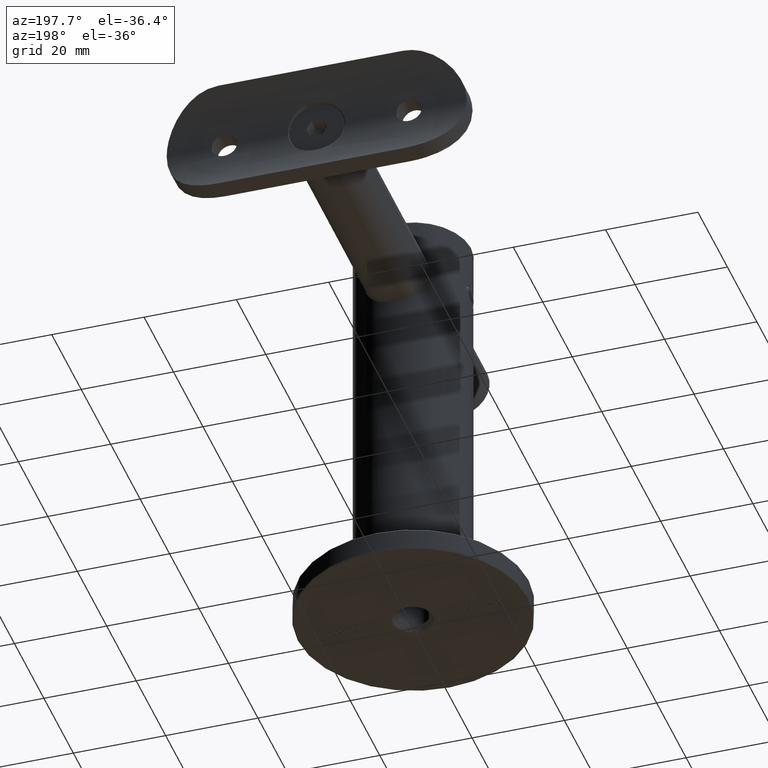
[diagram: clean part render]
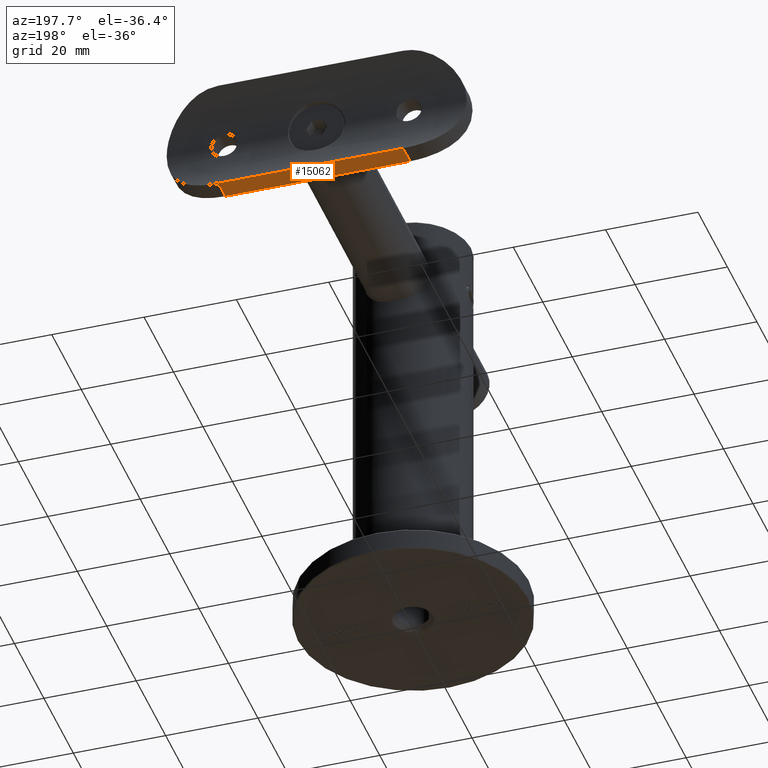
[diagram: same view with one face highlighted and labeled with its STEP entity id]
A machine part, auxiliary view. The second image highlights one B-rep face of the part: STEP entity #15062.
In plain terms, the highlighted planar face has unit normal (-0, 0, 1).
Its self-contained STEP definition (entity closure, byte-faithful):
#62 = PLANE ( 'NONE',  #17639 ) ;
#494 = LINE ( 'NONE', #12669, #6419 ) ;
#937 = VERTEX_POINT ( 'NONE', #4509 ) ;
#1541 = LINE ( 'NONE', #5332, #7486 ) ;
#1664 = CARTESIAN_POINT ( 'NONE',  ( -12.50000000000000000, 3.318729470161012600, 32.50000000000000000 ) ) ;
#1728 = DIRECTION ( 'NONE',  ( 1.000000000000000000, 3.645542167638208600E-016, -0.0000000000000000000 ) ) ;
#1934 = CARTESIAN_POINT ( 'NONE',  ( -12.50000000000000000, 3.318729470161012600, -20.00000000000000400 ) ) ;
#4321 = VERTEX_POINT ( 'NONE', #18074 ) ;
#4509 = CARTESIAN_POINT ( 'NONE',  ( -12.50000000000000200, 3.318729470161017000, 20.00000000000000000 ) ) ;
#5239 = ORIENTED_EDGE ( 'NONE', *, *, #11519, .F. ) ;
#5332 = CARTESIAN_POINT ( 'NONE',  ( -12.50000000000000200, 3.318729470161017000, 32.50000000000000000 ) ) ;
#6322 = LINE ( 'NONE', #8379, #15455 ) ;
#6419 = VECTOR ( 'NONE', #8395, 1000.000000000000000 ) ;
#6627 = ORIENTED_EDGE ( 'NONE', *, *, #18864, .T. ) ;
#6900 = DIRECTION ( 'NONE',  ( -0.0000000000000000000, -0.0000000000000000000, -1.000000000000000000 ) ) ;
#7104 = VERTEX_POINT ( 'NONE', #12230 ) ;
#7486 = VECTOR ( 'NONE', #17167, 1000.000000000000000 ) ;
#7726 = ORIENTED_EDGE ( 'NONE', *, *, #12759, .T. ) ;
#8379 = CARTESIAN_POINT ( 'NONE',  ( -12.50000000000000200, 8.077208171562675800, 32.50000000000000000 ) ) ;
#8395 = DIRECTION ( 'NONE',  ( -3.645542167638208600E-016, 1.000000000000000000, -0.0000000000000000000 ) ) ;
#9210 = EDGE_LOOP ( 'NONE', ( #5239, #6627, #12231, #7726 ) ) ;
#9829 = VECTOR ( 'NONE', #15064, 1000.000000000000000 ) ;
#11519 = EDGE_CURVE ( 'NONE', #937, #4321, #1541, .T. ) ;
#11758 = DIRECTION ( 'NONE',  ( -3.645542167638208600E-016, 1.000000000000000000, 0.0000000000000000000 ) ) ;
#12230 = CARTESIAN_POINT ( 'NONE',  ( -12.50000000000000200, 8.077208171562675800, -20.00000000000000400 ) ) ;
#12231 = ORIENTED_EDGE ( 'NONE', *, *, #14008, .T. ) ;
#12669 = CARTESIAN_POINT ( 'NONE',  ( -12.50000000000000200, 8.077208171562674000, 20.00000000000000000 ) ) ;
#12759 = EDGE_CURVE ( 'NONE', #7104, #4321, #18205, .T. ) ;
#13261 = CARTESIAN_POINT ( 'NONE',  ( -12.50000000000000200, 8.077208171562675800, 20.00000000000000000 ) ) ;
#14008 = EDGE_CURVE ( 'NONE', #15139, #7104, #6322, .T. ) ;
#15062 = ADVANCED_FACE ( 'NONE', ( #16571 ), #62, .F. ) ;
#15064 = DIRECTION ( 'NONE',  ( 3.645542167638208600E-016, -1.000000000000000000, 0.0000000000000000000 ) ) ;
#15139 = VERTEX_POINT ( 'NONE', #13261 ) ;
#15455 = VECTOR ( 'NONE', #6900, 1000.000000000000000 ) ;
#16571 = FACE_OUTER_BOUND ( 'NONE', #9210, .T. ) ;
#17167 = DIRECTION ( 'NONE',  ( -0.0000000000000000000, -0.0000000000000000000, -1.000000000000000000 ) ) ;
#17639 = AXIS2_PLACEMENT_3D ( 'NONE', #1664, #1728, #11758 ) ;
#18074 = CARTESIAN_POINT ( 'NONE',  ( -12.50000000000000200, 3.318729470161017000, -20.00000000000000400 ) ) ;
#18205 = LINE ( 'NONE', #1934, #9829 ) ;
#18864 = EDGE_CURVE ( 'NONE', #937, #15139, #494, .T. ) ;